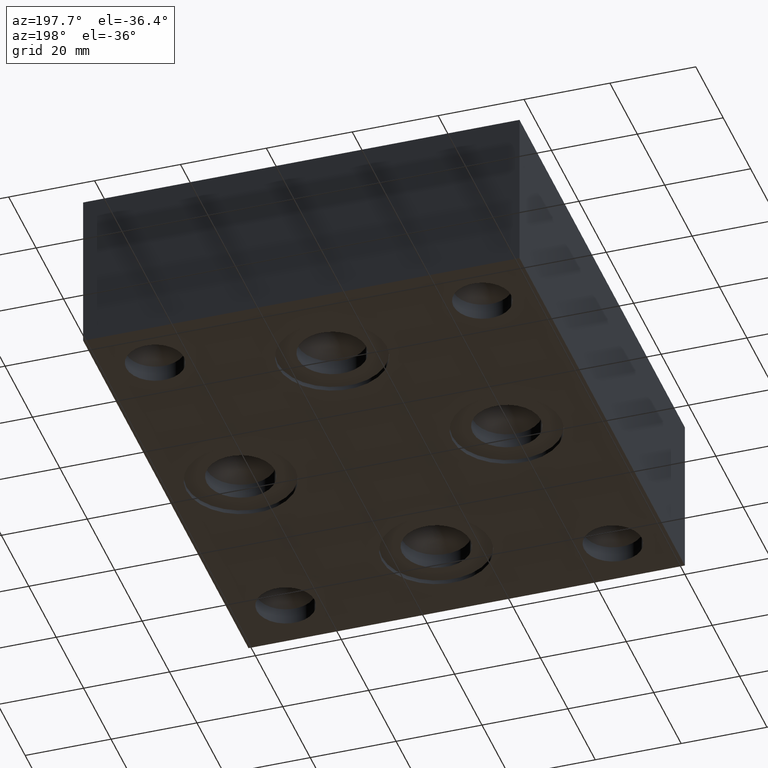
[diagram: clean part render]
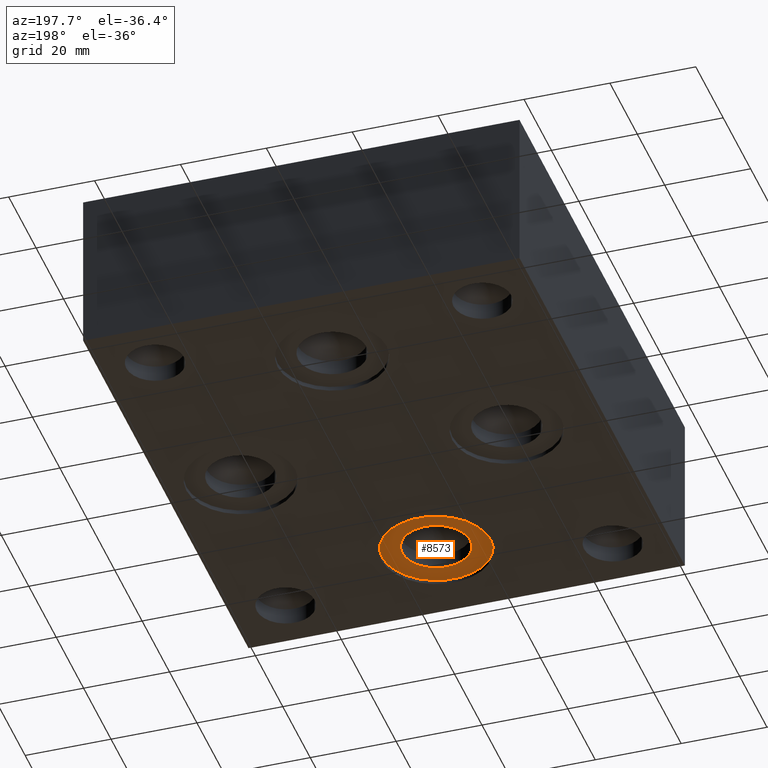
[diagram: same view with one face highlighted and labeled with its STEP entity id]
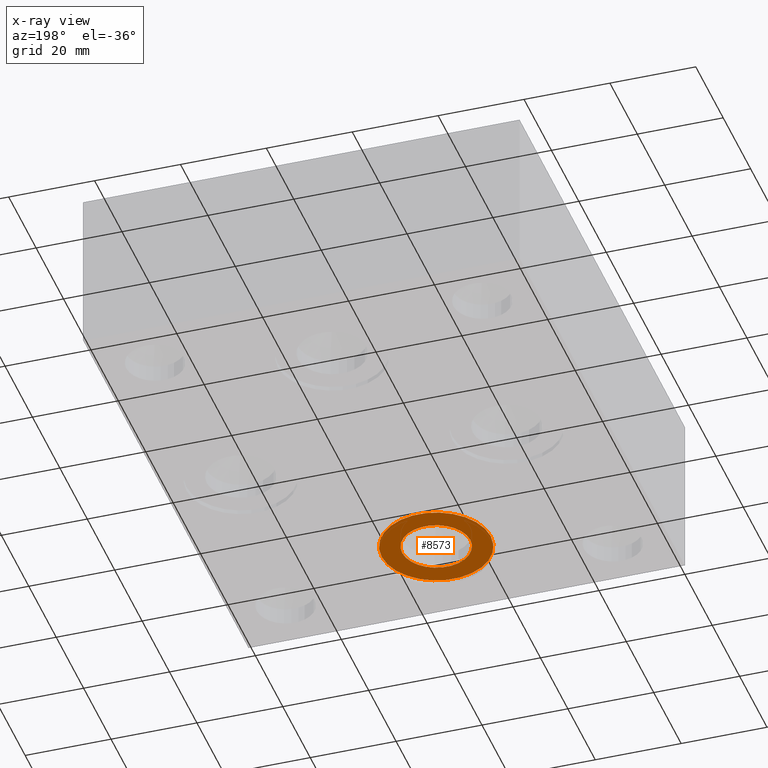
[diagram: x-ray of the same camera — body ghosted, the highlighted face saturated]
A machine part, auxiliary view. The second image highlights one B-rep face of the part: STEP entity #8573.
The next image is the same camera in x-ray: the body ghosted, the highlighted face saturated — about 0% of this face is hidden behind the body in this view.
In plain terms, the highlighted planar face has unit normal (0, 0, -1).
Its self-contained STEP definition (entity closure, byte-faithful):
#41=CIRCLE('',#8912,12.7);
#42=CIRCLE('',#8913,12.7);
#43=CIRCLE('',#8915,7.9375);
#217=FACE_BOUND('',#1458,.T.);
#983=FACE_OUTER_BOUND('',#1457,.T.);
#1457=EDGE_LOOP('',(#7234,#7235));
#1458=EDGE_LOOP('',(#7236));
#3890=VERTEX_POINT('',#14429);
#3891=VERTEX_POINT('',#14431);
#3892=VERTEX_POINT('',#14435);
#5041=EDGE_CURVE('',#3891,#3890,#41,.T.);
#5042=EDGE_CURVE('',#3890,#3891,#42,.T.);
#5043=EDGE_CURVE('',#3892,#3892,#43,.T.);
#7234=ORIENTED_EDGE('',*,*,#5041,.T.);
#7235=ORIENTED_EDGE('',*,*,#5042,.T.);
#7236=ORIENTED_EDGE('',*,*,#5043,.F.);
#7827=PLANE('',#8914);
#8573=ADVANCED_FACE('',(#983,#217),#7827,.T.);
#8912=AXIS2_PLACEMENT_3D('',#14432,#10375,#10376);
#8913=AXIS2_PLACEMENT_3D('',#14433,#10377,#10378);
#8914=AXIS2_PLACEMENT_3D('',#14434,#10379,#10380);
#8915=AXIS2_PLACEMENT_3D('',#14436,#10381,#10382);
#10375=DIRECTION('center_axis',(0.,0.,-1.));
#10376=DIRECTION('ref_axis',(1.,0.,0.));
#10377=DIRECTION('center_axis',(0.,0.,-1.));
#10378=DIRECTION('ref_axis',(1.,0.,0.));
#10379=DIRECTION('center_axis',(0.,0.,-1.));
#10380=DIRECTION('ref_axis',(1.,0.,0.));
#10381=DIRECTION('center_axis',(0.,0.,-1.));
#10382=DIRECTION('ref_axis',(1.,0.,0.));
#14429=CARTESIAN_POINT('',(38.1,22.225,1.016));
#14431=CARTESIAN_POINT('',(63.5,22.225,1.016));
#14432=CARTESIAN_POINT('Origin',(50.8,22.225,1.016));
#14433=CARTESIAN_POINT('Origin',(50.8,22.225,1.016));
#14434=CARTESIAN_POINT('Origin',(50.8,22.225,1.016));
#14435=CARTESIAN_POINT('',(42.8625,22.225,1.016));
#14436=CARTESIAN_POINT('Origin',(50.8,22.225,1.016));